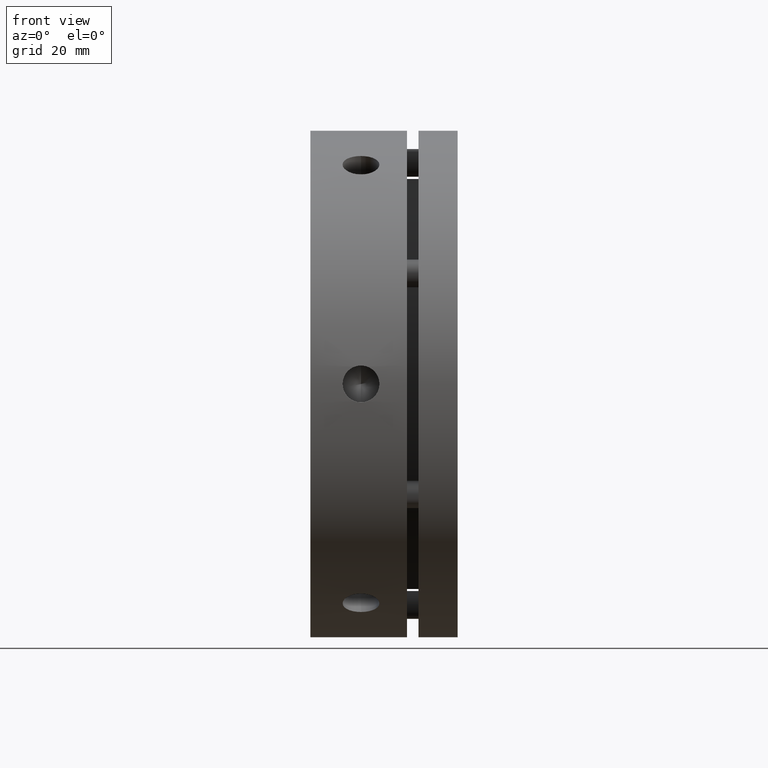
[diagram: clean part render]
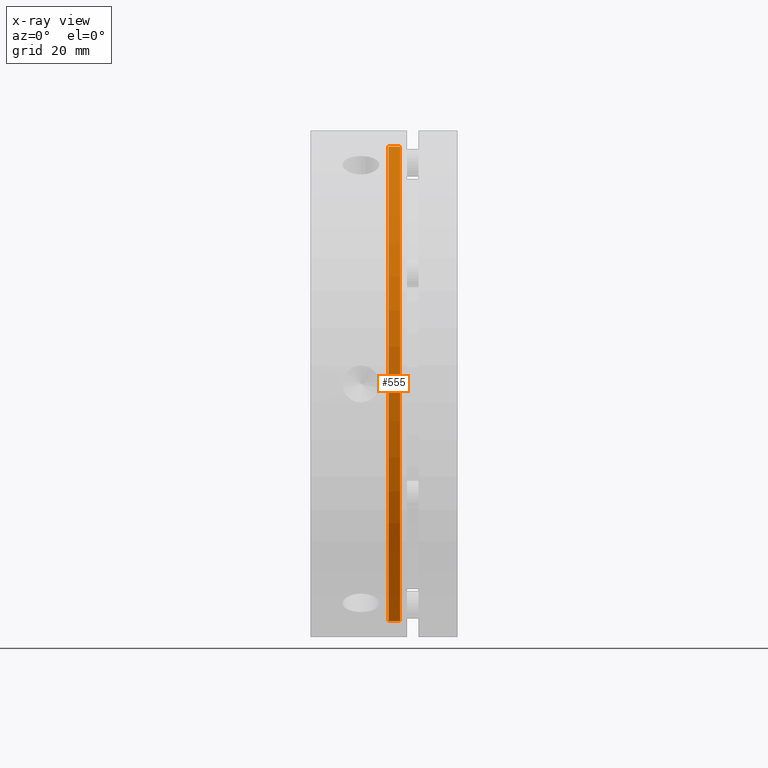
[diagram: x-ray — body ghosted, one internal face saturated and labeled with its STEP entity id]
A machine part, front view, then the same camera in x-ray: the body is ghosted and one INTERNAL B-rep face — a face not visible from any outside direction — is saturated and labeled: STEP entity #555.
In plain terms, the highlighted cylindrical surface (partial cylindrical patch) has radius 51.5 mm, axis along (-1, 0, 0).
Its self-contained STEP definition (entity closure, byte-faithful):
#228 = EDGE_CURVE ( 'NONE', #4527, #4523, #2565, .T. ) ;
#235 = EDGE_CURVE ( 'NONE', #4520, #4527, #2575, .T. ) ;
#250 = EDGE_CURVE ( 'NONE', #4532, #4520, #2601, .T. ) ;
#286 = AXIS2_PLACEMENT_3D ( 'NONE', #3057, #3058, #3059 ) ;
#299 = AXIS2_PLACEMENT_3D ( 'NONE', #3003, #3004, #3005 ) ;
#321 = EDGE_CURVE ( 'NONE', #4532, #4523, #2670, .T. ) ;
#555 = ADVANCED_FACE ( 'NONE', ( #773 ), #779, .F. ) ;
#773 = FACE_OUTER_BOUND ( 'NONE', #2520, .T. ) ;
#779 = CYLINDRICAL_SURFACE ( 'NONE', #4479, 51.50000000000000700 ) ;
#1865 = CARTESIAN_POINT ( 'NONE',  ( 19.49999999999999600, 6.306931015608869600E-015, -51.50000000000000700 ) ) ;
#1875 = CARTESIAN_POINT ( 'NONE',  ( 17.00000000000000000, 0.0000000000000000000, 51.50000000000000700 ) ) ;
#1879 = CARTESIAN_POINT ( 'NONE',  ( 17.00000000000000000, 6.306931015608869600E-015, -51.50000000000000700 ) ) ;
#1884 = CARTESIAN_POINT ( 'NONE',  ( 19.49999999999999600, 0.0000000000000000000, 51.50000000000000700 ) ) ;
#2520 = EDGE_LOOP ( 'NONE', ( #4171, #4158, #4187, #4186 ) ) ;
#2565 = CIRCLE ( 'NONE', #299, 51.50000000000000700 ) ;
#2575 = LINE ( 'NONE', #3019, #2579 ) ;
#2579 = VECTOR ( 'NONE', #3016, 1000.000000000000000 ) ;
#2601 = CIRCLE ( 'NONE', #286, 51.50000000000000700 ) ;
#2670 = LINE ( 'NONE', #3199, #2673 ) ;
#2673 = VECTOR ( 'NONE', #3200, 1000.000000000000000 ) ;
#3003 = CARTESIAN_POINT ( 'NONE',  ( 17.00000000000000000, 0.0000000000000000000, 0.0000000000000000000 ) ) ;
#3004 = DIRECTION ( 'NONE',  ( -1.000000000000000000, 0.0000000000000000000, 0.0000000000000000000 ) ) ;
#3005 = DIRECTION ( 'NONE',  ( 0.0000000000000000000, 0.0000000000000000000, 1.000000000000000000 ) ) ;
#3016 = DIRECTION ( 'NONE',  ( -1.000000000000000000, 0.0000000000000000000, 0.0000000000000000000 ) ) ;
#3019 = CARTESIAN_POINT ( 'NONE',  ( 18.24999999999999600, 6.306931015608869600E-015, -51.50000000000000700 ) ) ;
#3057 = CARTESIAN_POINT ( 'NONE',  ( 19.49999999999999600, 0.0000000000000000000, 0.0000000000000000000 ) ) ;
#3058 = DIRECTION ( 'NONE',  ( 1.000000000000000000, -0.0000000000000000000, -0.0000000000000000000 ) ) ;
#3059 = DIRECTION ( 'NONE',  ( 0.0000000000000000000, 0.0000000000000000000, 1.000000000000000000 ) ) ;
#3199 = CARTESIAN_POINT ( 'NONE',  ( 18.24999999999999600, 0.0000000000000000000, 51.50000000000000700 ) ) ;
#3200 = DIRECTION ( 'NONE',  ( -1.000000000000000000, 0.0000000000000000000, 0.0000000000000000000 ) ) ;
#3976 = DIRECTION ( 'NONE',  ( 0.0000000000000000000, 0.0000000000000000000, 1.000000000000000000 ) ) ;
#3978 = DIRECTION ( 'NONE',  ( -1.000000000000000000, 0.0000000000000000000, 0.0000000000000000000 ) ) ;
#3980 = CARTESIAN_POINT ( 'NONE',  ( 18.24999999999999600, 0.0000000000000000000, 0.0000000000000000000 ) ) ;
#4158 = ORIENTED_EDGE ( 'NONE', *, *, #235, .T. ) ;
#4171 = ORIENTED_EDGE ( 'NONE', *, *, #250, .T. ) ;
#4186 = ORIENTED_EDGE ( 'NONE', *, *, #321, .F. ) ;
#4187 = ORIENTED_EDGE ( 'NONE', *, *, #228, .T. ) ;
#4479 = AXIS2_PLACEMENT_3D ( 'NONE', #3980, #3978, #3976 ) ;
#4520 = VERTEX_POINT ( 'NONE', #1865 ) ;
#4523 = VERTEX_POINT ( 'NONE', #1875 ) ;
#4527 = VERTEX_POINT ( 'NONE', #1879 ) ;
#4532 = VERTEX_POINT ( 'NONE', #1884 ) ;